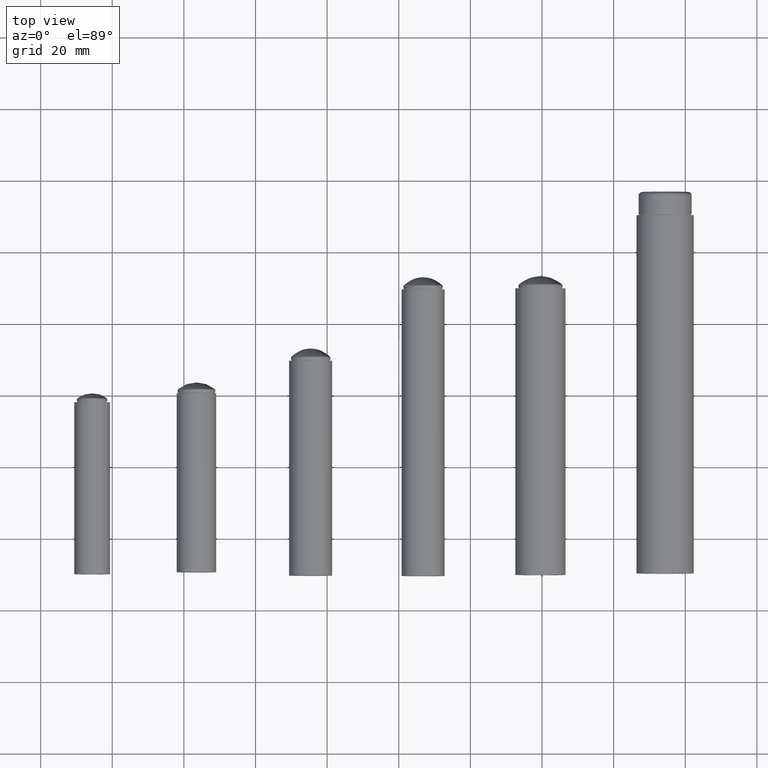
[diagram: clean part render]
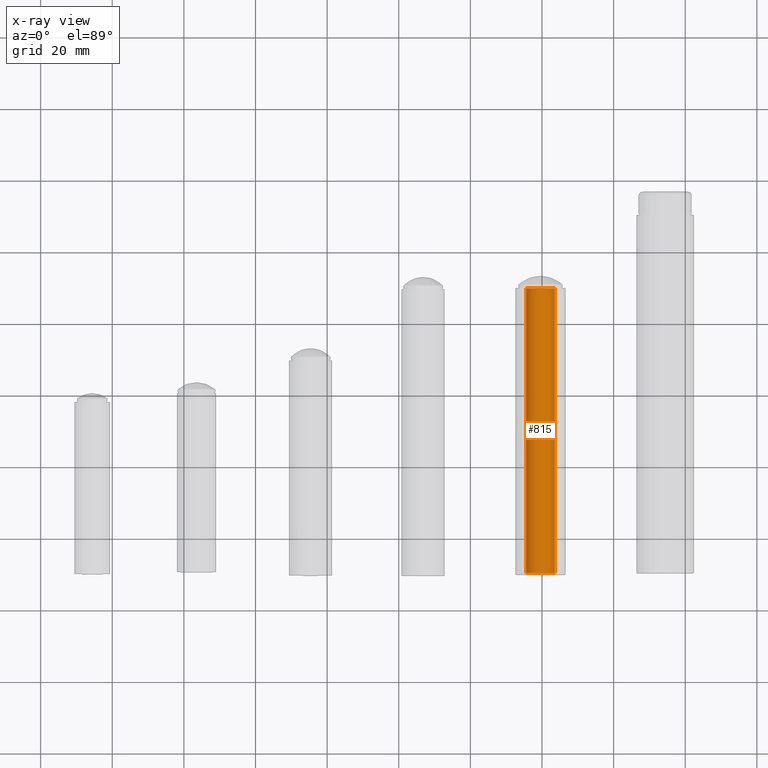
[diagram: x-ray — body ghosted, one internal face saturated and labeled with its STEP entity id]
A machine part, top view, then the same camera in x-ray: the body is ghosted and one INTERNAL B-rep face — a face not visible from any outside direction — is saturated and labeled: STEP entity #815.
In plain terms, the highlighted cylindrical surface (bore or boss wall) has radius 4 mm, axis along (-0, 1, 0).
Its self-contained STEP definition (entity closure, byte-faithful):
#241=FACE_BOUND('',#416,.T.);
#305=FACE_OUTER_BOUND('',#415,.T.);
#415=EDGE_LOOP('',(#715));
#416=EDGE_LOOP('',(#716));
#484=CIRCLE('',#963,4.00000000000001);
#486=CIRCLE('',#968,4.00000000000001);
#544=VERTEX_POINT('',#1517);
#546=VERTEX_POINT('',#1524);
#604=EDGE_CURVE('',#544,#544,#484,.T.);
#606=EDGE_CURVE('',#546,#546,#486,.T.);
#715=ORIENTED_EDGE('',*,*,#606,.T.);
#716=ORIENTED_EDGE('',*,*,#604,.F.);
#756=CYLINDRICAL_SURFACE('',#969,4.00000000000001);
#815=ADVANCED_FACE('',(#305,#241),#756,.T.);
#963=AXIS2_PLACEMENT_3D('',#1518,#1256,#1257);
#968=AXIS2_PLACEMENT_3D('',#1525,#1266,#1267);
#969=AXIS2_PLACEMENT_3D('',#1526,#1268,#1269);
#1256=DIRECTION('center_axis',(-4.10526254053798E-16,1.,0.));
#1257=DIRECTION('ref_axis',(-1.,0.,0.));
#1266=DIRECTION('center_axis',(-4.10526254053798E-16,1.,0.));
#1267=DIRECTION('ref_axis',(1.,4.10526254053798E-16,0.));
#1268=DIRECTION('center_axis',(-4.10526254053798E-16,1.,0.));
#1269=DIRECTION('ref_axis',(-1.,0.,0.));
#1517=CARTESIAN_POINT('',(-4.,2.46519032881566E-31,0.));
#1518=CARTESIAN_POINT('Origin',(-1.97215226305253E-30,4.44089209850063E-15,
0.));
#1524=CARTESIAN_POINT('',(-3.99999999999998,-79.5,0.));
#1525=CARTESIAN_POINT('Origin',(3.2636837197277E-14,-79.5,0.));
#1526=CARTESIAN_POINT('Origin',(1.63184185986385E-14,-39.75,0.));